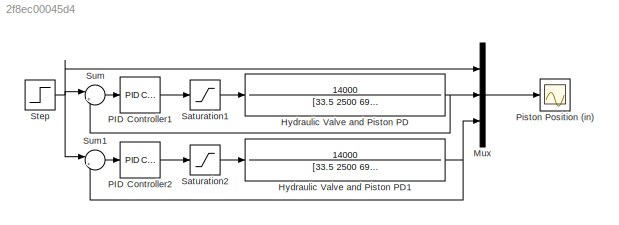
MODEL slx_2f8ec00045d4
KIND model
CONFIG AbsTol = auto
CONFIG EnableMultiTasking = off
CONFIG FixedStep = auto
CONFIG MaxStep = auto
CONFIG MinStep = auto
CONFIG RelTol = 1e-3
CONFIG SampleTimeConstraint = Unconstrained
CONFIG Solver = VariableStepAuto
CONFIG SolverName = VariableStepAuto
CONFIG StartTime = 0.0
CONFIG StopTime = 10
BLOCK [TransferFcn] Hydraulic Valve and Piston PD
  Denominator = [33.5 2500 69.2 0.02]
  Numerator = 14000
BLOCK [TransferFcn] Hydraulic Valve and Piston PD1
  Denominator = [33.5 2500 69.2 0.02]
  Numerator = 14000
BLOCK [Mux] Mux
  DisplayOption = bar
  Inputs = 3
  Ports = [3, 1]
BLOCK [Reference] PID Controller1  REF=simulink/Continuous/PID Controller
  Ports = [1, 1]
  SourceBlock = simulink/Continuous/PID Controller
  SourceProductBaseCode = SL
  SourceProductName = Simulink
  SourceType = PID 1dof
BLOCK [Reference] PID Controller2  REF=simulink/Continuous/PID Controller
  Ports = [1, 1]
  SourceBlock = simulink/Continuous/PID Controller
  SourceProductBaseCode = SL
  SourceProductName = Simulink
  SourceType = PID 1dof
BLOCK [Scope] Piston Position (in) 
  Floating = off
  NumInputPorts = 1
  Ports = [1]
  ScopeSpecificationString = Simulink.scopes.TimeScopeBlockCfg('CurrentConfiguration', extmgr.ConfigurationSet(extmgr.Configuration('Core','General UI',true),extmgr.Configuration('Core','Source UI',true),extmgr.Configuration('Sources','WiredSimulink',true),extmgr.Configuration('Visuals','Time Domain',true,'SerializedDisplays',{struct('MinYLimReal','-0.19978','MaxYLimReal','2.00302','YLabelReal','','MinYLimMag','0.00000','MaxY...<+1472ch>
BLOCK [Saturate] Saturation1
  InputPortMap = u0
  Ports = [1, 1]
BLOCK [Saturate] Saturation2
  InputPortMap = u0
  Ports = [1, 1]
BLOCK [Step] Step
  SampleTime = 0
BLOCK [Sum] Sum
  IconShape = round
  InputSameDT = off
  Inputs = |+-
  OutDataTypeStr = Inherit: Inherit via internal rule
  Ports = [2, 1]
  SaturateOnIntegerOverflow = off
BLOCK [Sum] Sum1
  IconShape = round
  InputSameDT = off
  Inputs = |+-
  OutDataTypeStr = Inherit: Inherit via internal rule
  Ports = [2, 1]
  SaturateOnIntegerOverflow = off
NET Hydraulic Valve and Piston PD1:1 -> Mux:3, Sum1:2
NET Hydraulic Valve and Piston PD:1 -> Mux:2, Sum:2
LINE Mux:1 -> Piston Position (in) :1
LINE PID Controller1:1 -> Saturation1:1
LINE PID Controller2:1 -> Saturation2:1
LINE Saturation1:1 -> Hydraulic Valve and Piston PD:1
LINE Saturation2:1 -> Hydraulic Valve and Piston PD1:1
NET Step:1 -> Mux:1, Sum1:1, Sum:1
LINE Sum1:1 -> PID Controller2:1
LINE Sum:1 -> PID Controller1:1
note: NET lines group one-source signal fan-out (src -> all destinations, sorted); 1:1 wires keep LINE
